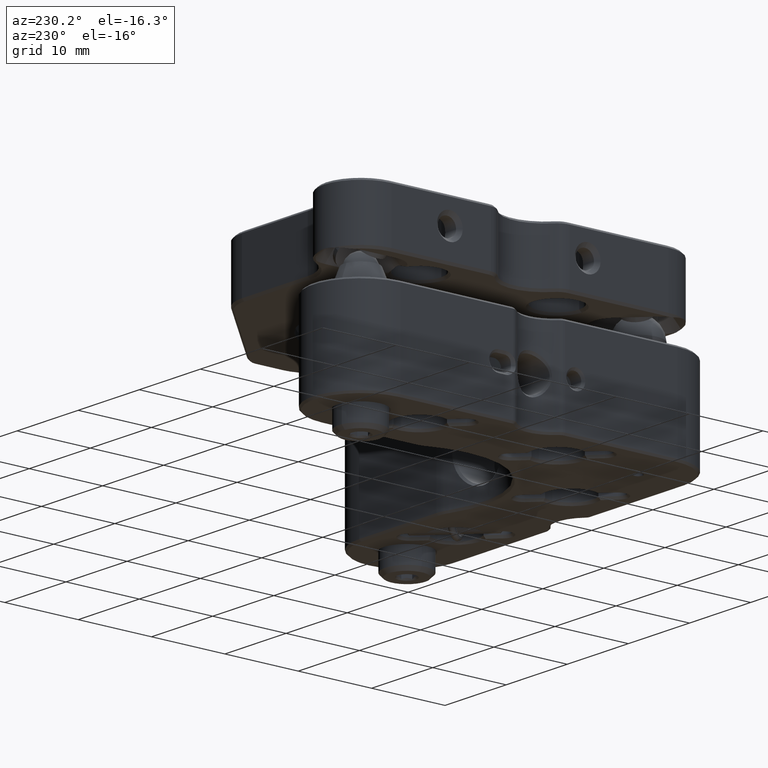
[diagram: clean part render]
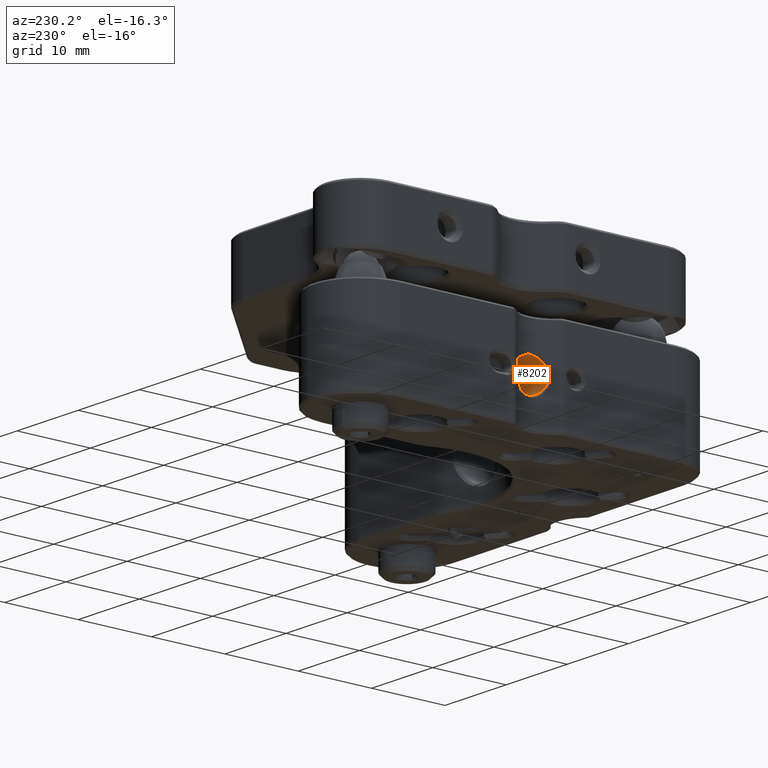
[diagram: same view with one face highlighted and labeled with its STEP entity id]
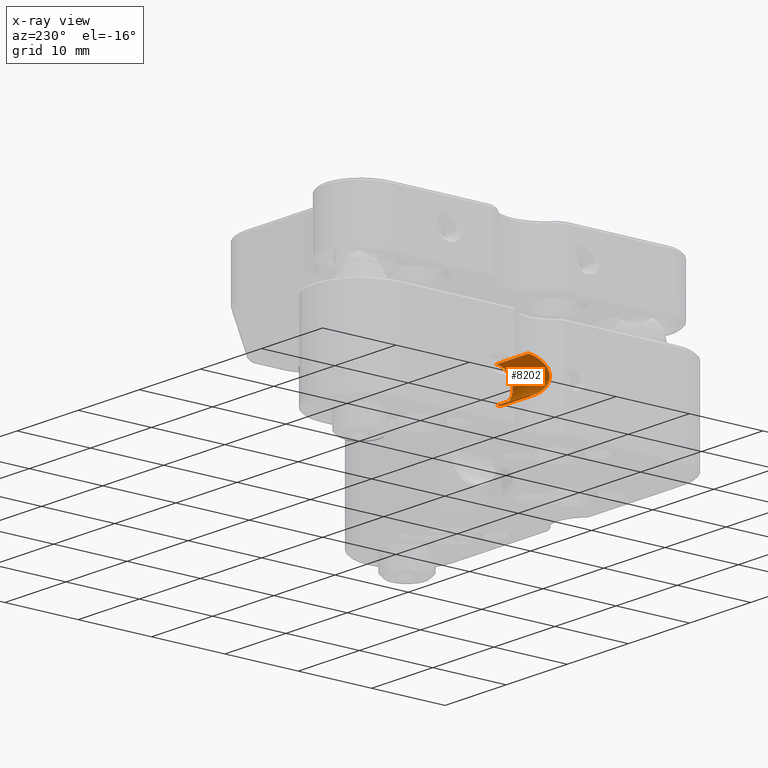
[diagram: x-ray of the same camera — body ghosted, the highlighted face saturated]
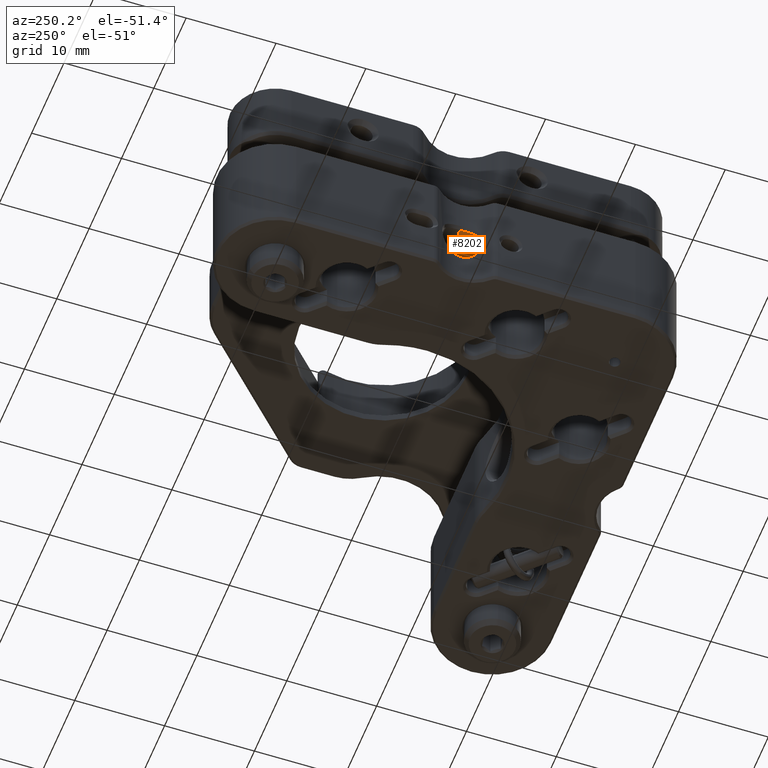
[diagram: same view with one face highlighted and labeled with its STEP entity id]
A machine part, auxiliary view. The second image highlights one B-rep face of the part: STEP entity #8202.
The next image is the same camera in x-ray: the body ghosted, the highlighted face saturated — about 5% of this face is hidden behind the body in this view.
A second angle (auxiliary view) of the same face is appended — the face is thin or edge-on in the first view.
In plain terms, the highlighted cylindrical surface (edge-blend (fillet) strip) has radius 2.25 mm, axis along (1, 0, 0).
Its self-contained STEP definition (entity closure, byte-faithful):
#58 = CARTESIAN_POINT ( 'NONE',  ( -24.32466739141865375, -2.107982197470907870, -0.7882192746797258565 ) ) ;
#196 = CARTESIAN_POINT ( 'NONE',  ( -24.21965348791920647, -1.962138421568791147, -1.101173609301772993 ) ) ;
#343 = CARTESIAN_POINT ( 'NONE',  ( -23.81481260575715098, -1.184974016732833313, 1.913272674546743657 ) ) ;
#630 = CARTESIAN_POINT ( 'NONE',  ( -23.60011776116756366, -0.08059759224475775141, 2.249826886914103596 ) ) ;
#780 = CARTESIAN_POINT ( 'NONE',  ( -24.04736731385843029, -1.685180040043422478, 1.491041833133006644 ) ) ;
#927 = CARTESIAN_POINT ( 'NONE',  ( -24.01242246992567431, -1.621413403093048711, 1.559999815251828847 ) ) ;
#1097 = CARTESIAN_POINT ( 'NONE',  ( -23.63499077402618553, -0.4844212129987863769, -2.197544627700772857 ) ) ;
#1375 = CARTESIAN_POINT ( 'NONE',  ( -23.84144468366184100, -1.253499736674638543, -1.868504353404251805 ) ) ;
#1417 = ORIENTED_EDGE ( 'NONE', *, *, #3854, .F. ) ;
#1507 = CARTESIAN_POINT ( 'NONE',  ( -23.60000000000001563, -2.119799535668940180E-15, -2.249999999999998668 ) ) ;
#1636 = CARTESIAN_POINT ( 'NONE',  ( -23.80208170770547937, -1.150266283493316610, -1.934357542465797275 ) ) ;
#1772 = CARTESIAN_POINT ( 'NONE',  ( -24.20209885077063205, -1.936302986817731719, -1.146103401881062522 ) ) ;
#1842 = EDGE_LOOP ( 'NONE', ( #14819, #25540, #21778, #18399, #1417 ) ) ;
#1902 = CARTESIAN_POINT ( 'NONE',  ( -24.19099546384305910, -1.919698856626135264, 1.173705852093318569 ) ) ;
#2029 = CIRCLE ( 'NONE', #5237, 2.250000000000000000 ) ;
#2039 = CARTESIAN_POINT ( 'NONE',  ( -24.42548436316024763, -2.235291565838195105, 0.2594863531247544319 ) ) ;
#2184 = CARTESIAN_POINT ( 'NONE',  ( -24.27754732932206494, -2.044311447035880747, -0.9400006432348685381 ) ) ;
#2322 = CARTESIAN_POINT ( 'NONE',  ( -24.43456181992873866, -2.246251538810859039, 0.1493326201847920420 ) ) ;
#2461 = CARTESIAN_POINT ( 'NONE',  ( -23.84836112443111489, -1.270805870449116526, 1.856782638456412338 ) ) ;
#2603 = CARTESIAN_POINT ( 'NONE',  ( -23.61340345148212094, -0.3088290848708334368, 2.230010077900894228 ) ) ;
#2739 = CARTESIAN_POINT ( 'NONE',  ( -23.92516785797679546, -1.447370307694779701, 1.722696405565069977 ) ) ;
#2747 = CARTESIAN_POINT ( 'NONE',  ( -18.39999999999999503, -2.144366948876982281E-15, -2.250000000000000000 ) ) ;
#2887 = CARTESIAN_POINT ( 'NONE',  ( -24.09139812314848328, -1.761318670483189353, 1.400148508519181378 ) ) ;
#3036 = CARTESIAN_POINT ( 'NONE',  ( -24.00106640247429368, -1.600035747220506233, 1.581896963002785483 ) ) ;
#3212 = CARTESIAN_POINT ( 'NONE',  ( -23.64048718123315851, -0.5207196192286990266, -2.189236488985344398 ) ) ;
#3215 = DIRECTION ( 'NONE',  ( 1.000000000000000000, -0.000000000000000000, -0.000000000000000000 ) ) ;
#3347 = CARTESIAN_POINT ( 'NONE',  ( -23.91623853348697537, -1.428130008998770517, -1.738678331484595052 ) ) ;
#3482 = CARTESIAN_POINT ( 'NONE',  ( -24.05494520323224705, -1.698571403664412394, -1.475696304095678091 ) ) ;
#3752 = CARTESIAN_POINT ( 'NONE',  ( -24.06499259472356300, -1.716126171132641431, -1.455160494093574286 ) ) ;
#3854 = EDGE_CURVE ( 'NONE', #26001, #12897, #17451, .T. ) ;
#3873 = CYLINDRICAL_SURFACE ( 'NONE', #21879, 2.249999999999998668 ) ;
#3878 = CARTESIAN_POINT ( 'NONE',  ( -23.60000371442932732, -0.004986978756578643902, 2.249994473336073497 ) ) ;
#3880 = CARTESIAN_POINT ( 'NONE',  ( -24.14413757411822914, -1.847374540177338487, -1.284438556998918735 ) ) ;
#4024 = CARTESIAN_POINT ( 'NONE',  ( -24.22144305606700598, -1.964826367115696693, 1.096838613752632030 ) ) ;
#4158 = CARTESIAN_POINT ( 'NONE',  ( -24.13208068386279592, -1.828160763054214044, 1.311645750601991178 ) ) ;
#4305 = CARTESIAN_POINT ( 'NONE',  ( -24.31078631630225928, -2.089452337690791861, 0.8348894395663435386 ) ) ;
#4445 = CARTESIAN_POINT ( 'NONE',  ( -24.30496698120418841, -2.081646276320482603, 0.8541348148865488543 ) ) ;
#4589 = CARTESIAN_POINT ( 'NONE',  ( -24.12531682003019640, -1.817264383983252962, 1.326701364041354969 ) ) ;
#4814 = CARTESIAN_POINT ( 'NONE',  ( -12.39999999999999680, -2.144366948876982281E-15, -2.249999999999998668 ) ) ;
#4874 = CARTESIAN_POINT ( 'NONE',  ( -23.92309251910576151, -1.442934219820769748, 1.726422293422005927 ) ) ;
#5025 = CARTESIAN_POINT ( 'NONE',  ( -23.93089802106196373, -1.459556543177292331, 1.712383838574647710 ) ) ;
#5038 = B_SPLINE_CURVE_WITH_KNOTS ( 'NONE', 3,
 ( #1507, #14687, #25331, #1097, #3212, #10147, #25462, #6016, #18409, #20527, #9883, #20807, #25196, #9737, #18805, #23072, #27053, #27466, #1636, #12283, #25065, #18547, #1375, #7606, #16285, #8008, #5889, #18676, #16689, #3347, #20939, #18942, #24927, #27192, #14557, #14150, #14279, #23202, #27326, #10016, #22930, #7873, #5756, #5492, #5630, #3482, #3752, #10287, #16556, #12411, #27600, #21068, #12012, #12150, #8140, #16819, #22797, #20666, #14419, #3880, #12960, #21622, #10838, #17370, #1772, #8700, #196, #12681, #14830, #28016, #6434, #21204, #2184, #8566, #23478, #12550, #58, #19356, #17237, #21476, #8274, #10417, #25883, #21764, #8841, #10692, #15251, #27867, #8415, #19071, #26020, #2322, #2039, #19631, #19495, #27729, #6574, #16950, #10553, #25604, #15109, #23747, #10977, #23888, #4305, #4445, #13103, #17510, #26165, #17097, #6715, #23336, #6160, #4024, #21331, #1902, #19209, #25744, #6300, #14970, #23611, #12813, #4158, #4589, #22328, #7147, #24028, #2887, #13839, #15823, #9125, #20200, #13690, #17799, #13395, #780, #11548, #9417, #927, #13248, #6853, #3036, #26880, #22046, #24466, #26305, #26449, #5025, #2739, #4874, #7005, #22187, #21905, #15680, #11257, #24318, #2461, #11112, #343, #26739, #18093, #5175, #15537, #13545, #7290, #15966, #24612, #22475, #11397, #19769, #11702, #8983, #20350, #20055, #15395, #2603, #17654, #630, #9568 ),
 .UNSPECIFIED., .F., .F.,
 ( 4, 2, 2, 2, 1, 2, 2, 1, 2, 2, 1, 1, 2, 2, 2, 1, 2, 2, 2, 1, 1, 2, 2, 2, 2, 2, 2, 1, 1, 2, 2, 1, 2, 2, 1, 2, 2, 2, 1, 2, 2, 2, 2, 2, 1, 2, 2, 2, 2, 2, 2, 2, 2, 2, 2, 1, 2, 2, 1, 2, 2, 2, 1, 2, 2, 2, 1, 2, 2, 1, 2, 2, 1, 1, 1, 2, 2, 2, 2, 2, 1, 2, 2, 2, 1, 2, 2, 2, 1, 2, 2, 1, 2, 2, 2, 2, 2, 2, 2, 2, 2, 4 ),
 ( 0.000000000000000000, 0.03124999999999691913, 0.03906249999999612116, 0.04687499999999532319, 0.05468749999999452521, 0.05859374999999412276, 0.06249999999999371336, 0.07031249999999292233, 0.07421874999999251987, 0.07812499999999211742, 0.08593749999999136802, 0.08984374999999089617, 0.09179687499999066025, 0.09374999999999042433, 0.1015624999999892170, 0.1054687499999884676, 0.1074218749999880929, 0.1093749999999877182, 0.1171874999999865941, 0.1210937499999861638, 0.1230468749999859557, 0.1240234374999857475, 0.1249999999999855393, 0.1289062499999849565, 0.1308593749999847899, 0.1328124999999846234, 0.1367187499999843181, 0.1386718749999841516, 0.1396484374999839295, 0.1401367187499840128, 0.1406249999999841238, 0.1445312499999845401, 0.1464843749999848455, 0.1484374999999851508, 0.1523437499999855671, 0.1542968749999857614, 0.1562499999999859557, 0.1640624999999860389, 0.1679687499999860389, 0.1699218749999860389, 0.1718749999999860389, 0.1796874999999862332, 0.1835937499999863998, 0.1874999999999865663, 0.1953124999999866773, 0.1992187499999867328, 0.2031249999999867883, 0.2109374999999869549, 0.2187499999999870937, 0.2265624999999872324, 0.2343749999999873712, 0.2499999999999877320, 0.2656249999999881206, 0.2734374999999882871, 0.2812499999999884537, 0.2890624999999886757, 0.2929687499999886757, 0.2968749999999886757, 0.3046874999999887312, 0.3085937499999888423, 0.3124999999999889533, 0.3203124999999891753, 0.3242187499999892863, 0.3261718749999895084, 0.3281249999999896749, 0.3359374999999904521, 0.3398437499999907296, 0.3417968749999910072, 0.3437499999999912292, 0.3476562499999917843, 0.3496093749999918954, 0.3515624999999920619, 0.3554687499999923950, 0.3574218749999925060, 0.3583984374999926725, 0.3588867187499928391, 0.3593749999999929501, 0.3632812499999932276, 0.3671874999999935052, 0.3710937499999937828, 0.3730468749999937828, 0.3740234374999939493, 0.3749999999999940603, 0.3828124999999944489, 0.3867187499999946709, 0.3886718749999948375, 0.3906249999999949485, 0.3984374999999952816, 0.4023437499999954481, 0.4042968749999954481, 0.4062499999999953926, 0.4140624999999958367, 0.4179687499999960587, 0.4218749999999962808, 0.4296874999999966693, 0.4374999999999970579, 0.4453124999999974465, 0.4531249999999978351, 0.4609374999999982236, 0.4687499999999986122, 0.4843749999999993339, 0.5000000000000000000 ),
 .UNSPECIFIED. ) ;
#5175 = CARTESIAN_POINT ( 'NONE',  ( -23.78271289249913778, -1.094378337773448395, 1.966010018256030278 ) ) ;
#5237 = AXIS2_PLACEMENT_3D ( 'NONE', #11743, #3215, #20670 ) ;
#5492 = CARTESIAN_POINT ( 'NONE',  ( -24.03251754270804241, -1.658423899465235163, -1.520622998695418726 ) ) ;
#5630 = CARTESIAN_POINT ( 'NONE',  ( -24.04682644022836868, -1.684237034009919309, -1.492146826282576111 ) ) ;
#5756 = CARTESIAN_POINT ( 'NONE',  ( -24.02900844056670948, -1.652026229955141368, -1.527551413787987311 ) ) ;
#5889 = CARTESIAN_POINT ( 'NONE',  ( -23.89533645739481926, -1.382002756631293572, -1.775721257017029098 ) ) ;
#6016 = CARTESIAN_POINT ( 'NONE',  ( -23.67378121897560561, -0.7007197345813125366, -2.138413464831346644 ) ) ;
#6160 = CARTESIAN_POINT ( 'NONE',  ( -24.23507277287832196, -1.984477545402289378, 1.060385529720133002 ) ) ;
#6300 = CARTESIAN_POINT ( 'NONE',  ( -24.16435586406479530, -1.879021418010904831, 1.237688114945835416 ) ) ;
#6434 = CARTESIAN_POINT ( 'NONE',  ( -24.25525332602293105, -2.013292599918183434, -1.005219265522200311 ) ) ;
#6574 = CARTESIAN_POINT ( 'NONE',  ( -24.39532704212714620, -2.198343580526146646, 0.4807436809092821561 ) ) ;
#6715 = CARTESIAN_POINT ( 'NONE',  ( -24.24481292806760990, -1.998418411905011460, 1.033883108627611680 ) ) ;
#6853 = CARTESIAN_POINT ( 'NONE',  ( -24.00367704756645537, -1.604978187774739329, 1.576882180350907436 ) ) ;
#7005 = CARTESIAN_POINT ( 'NONE',  ( -23.90588358200292163, -1.405784939822393387, 1.757201829681746874 ) ) ;
#7147 = CARTESIAN_POINT ( 'NONE',  ( -24.11259952756328317, -1.796566453705587429, 1.354657336426799752 ) ) ;
#7290 = CARTESIAN_POINT ( 'NONE',  ( -23.73530849180719215, -0.9449137381661967261, 2.042300820544774353 ) ) ;
#7606 = CARTESIAN_POINT ( 'NONE',  ( -23.85528789125227078, -1.288179446380618876, -1.845051611870786257 ) ) ;
#7873 = CARTESIAN_POINT ( 'NONE',  ( -24.02142226018101923, -1.638112429106720613, -1.542462853955179680 ) ) ;
#8008 = CARTESIAN_POINT ( 'NONE',  ( -23.88573599249775370, -1.360068028569856535, -1.792495936070026108 ) ) ;
#8098 = CARTESIAN_POINT ( 'NONE',  ( -23.59999993186399436, -0.0008312157879883444456, 2.249999999999999112 ) ) ;
#8140 = CARTESIAN_POINT ( 'NONE',  ( -24.10524728469431821, -1.784427163830970109, -1.370544248719187674 ) ) ;
#8202 = ADVANCED_FACE ( 'NONE', ( #12405 ), #3873, .F. ) ;
#8274 = CARTESIAN_POINT ( 'NONE',  ( -24.36471983342795511, -2.159879945449064031, -0.6315622192795918854 ) ) ;
#8415 = CARTESIAN_POINT ( 'NONE',  ( -24.43435871619175259, -2.246007000127956843, -0.1541673647870714647 ) ) ;
#8566 = CARTESIAN_POINT ( 'NONE',  ( -24.28809238459274411, -2.058783173987625226, -0.9078669199113602595 ) ) ;
#8700 = CARTESIAN_POINT ( 'NONE',  ( -24.21109530462076975, -1.949628363883574300, -1.123370932446053683 ) ) ;
#8841 = CARTESIAN_POINT ( 'NONE',  ( -24.40618234430998257, -2.211759257508585819, -0.4148050935231922254 ) ) ;
#8931 = B_SPLINE_CURVE_WITH_KNOTS ( 'NONE', 3,
 ( #14650, #18764, #10105, #8098, #11965 ),
 .UNSPECIFIED., .F., .F.,
 ( 4, 1, 4 ),
 ( 0.5000000000000000000, 0.5001717495703004168, 0.5003434991406008336 ),
 .UNSPECIFIED. ) ;
#8983 = CARTESIAN_POINT ( 'NONE',  ( -23.65361299977549692, -0.5983622717435874705, 2.169294210767562792 ) ) ;
#9125 = CARTESIAN_POINT ( 'NONE',  ( -24.08058158371583701, -1.742964730830065534, 1.422877398293449724 ) ) ;
#9417 = CARTESIAN_POINT ( 'NONE',  ( -24.02244677420066665, -1.640037770449433774, 1.540486773965078271 ) ) ;
#9568 = CARTESIAN_POINT ( 'NONE',  ( -23.60000371442932732, -0.004986978756578643902, 2.249994473336073497 ) ) ;
#9737 = CARTESIAN_POINT ( 'NONE',  ( -23.73877301411379293, -0.9571764656897961965, -2.036829078629896816 ) ) ;
#9883 = CARTESIAN_POINT ( 'NONE',  ( -23.70671159779474735, -0.8401996753201042001, -2.087322719221332612 ) ) ;
#10016 = CARTESIAN_POINT ( 'NONE',  ( -24.00786585935523831, -1.612924569527230956, -1.568851776943375631 ) ) ;
#10105 = CARTESIAN_POINT ( 'NONE',  ( -23.60000057499041759, -0.002493595382029266654, 2.249999078773657679 ) ) ;
#10147 = CARTESIAN_POINT ( 'NONE',  ( -23.65270709668393678, -0.5933609411396334465, -2.170674577195865762 ) ) ;
#10287 = CARTESIAN_POINT ( 'NONE',  ( -24.06948360221559469, -1.723915142958962532, -1.445925430258019118 ) ) ;
#10417 = CARTESIAN_POINT ( 'NONE',  ( -24.37279929602328821, -2.170130236378290611, -0.5953292986227219918 ) ) ;
#10553 = CARTESIAN_POINT ( 'NONE',  ( -24.37390940515928506, -2.171512006757292390, 0.5894022360598303312 ) ) ;
#10692 = CARTESIAN_POINT ( 'NONE',  ( -24.41159260998102809, -2.218393162715660782, -0.3776691793501304462 ) ) ;
#10838 = CARTESIAN_POINT ( 'NONE',  ( -24.17035758906329335, -1.888435233448775064, -1.223859797789765169 ) ) ;
#10977 = CARTESIAN_POINT ( 'NONE',  ( -24.33583845653862809, -2.122661869326520456, 0.7477894898248101940 ) ) ;
#11112 = CARTESIAN_POINT ( 'NONE',  ( -23.83271408251297174, -1.231696695783696782, 1.883308917584433972 ) ) ;
#11257 = CARTESIAN_POINT ( 'NONE',  ( -23.85648402685007952, -1.290781859903043172, 1.842947212187003636 ) ) ;
#11397 = CARTESIAN_POINT ( 'NONE',  ( -23.68230430970109879, -0.7396270244416485173, 2.125283129900632950 ) ) ;
#11548 = CARTESIAN_POINT ( 'NONE',  ( -24.03010402993888661, -1.654097594415238515, 1.525450315042449434 ) ) ;
#11702 = CARTESIAN_POINT ( 'NONE',  ( -23.66030921830811096, -0.6342703675253442697, 2.159076721765844642 ) ) ;
#11743 = CARTESIAN_POINT ( 'NONE',  ( -18.39999999999999503, -2.144366948876982281E-15, 0.000000000000000000 ) ) ;
#11965 = CARTESIAN_POINT ( 'NONE',  ( -23.59999995614657564, -4.739151444374919889E-13, 2.250000007561721471 ) ) ;
#12012 = CARTESIAN_POINT ( 'NONE',  ( -24.08497395083184855, -1.750496585947854067, -1.413743339675860522 ) ) ;
#12150 = CARTESIAN_POINT ( 'NONE',  ( -24.09558596671154618, -1.768406191140300177, -1.391329486886405675 ) ) ;
#12277 = DIRECTION ( 'NONE',  ( 0.000000000000000000, 0.000000000000000000, -1.000000000000000000 ) ) ;
#12283 = CARTESIAN_POINT ( 'NONE',  ( -23.82262335007533238, -1.205179767387268619, -1.900172341756956040 ) ) ;
#12405 = FACE_OUTER_BOUND ( 'NONE', #1842, .T. ) ;
#12411 = CARTESIAN_POINT ( 'NONE',  ( -24.07543713597314650, -1.734159710428061940, -1.433594123782083063 ) ) ;
#12477 = EDGE_CURVE ( 'NONE', #25483, #12897, #2029, .T. ) ;
#12542 = CARTESIAN_POINT ( 'NONE',  ( -12.39999999999999680, -2.144366948876982281E-15, 0.000000000000000000 ) ) ;
#12550 = CARTESIAN_POINT ( 'NONE',  ( -24.30916276325638847, -2.087337067340763852, -0.8408304651949356501 ) ) ;
#12681 = CARTESIAN_POINT ( 'NONE',  ( -24.22526154999554748, -1.970302443574133644, -1.086498404998810230 ) ) ;
#12742 = CARTESIAN_POINT ( 'NONE',  ( -18.39999999999999503, -1.868821419068827409E-15, 2.250000000000000000 ) ) ;
#12813 = CARTESIAN_POINT ( 'NONE',  ( -24.14202909892553706, -1.844091994466585893, 1.289338797182608021 ) ) ;
#12897 = VERTEX_POINT ( 'NONE', #2747 ) ;
#12960 = CARTESIAN_POINT ( 'NONE',  ( -24.15037574821124267, -1.857213682210707262, -1.270170239381414490 ) ) ;
#13103 = CARTESIAN_POINT ( 'NONE',  ( -24.29015420291931449, -2.061637369212327542, 0.9018544032980553293 ) ) ;
#13248 = CARTESIAN_POINT ( 'NONE',  ( -24.00777571262124965, -1.612716439193536244, 1.568995277089813456 ) ) ;
#13395 = CARTESIAN_POINT ( 'NONE',  ( -24.05597913144442757, -1.700390970848717931, 1.473598246407783918 ) ) ;
#13545 = CARTESIAN_POINT ( 'NONE',  ( -23.75535300662918203, -1.011205481066001166, 2.010302984436711071 ) ) ;
#13690 = CARTESIAN_POINT ( 'NONE',  ( -24.07466902191339386, -1.732856909166439863, 1.435209582817738916 ) ) ;
#13839 = CARTESIAN_POINT ( 'NONE',  ( -24.08515425874127658, -1.750749514118152383, 1.413300438050230978 ) ) ;
#14150 = CARTESIAN_POINT ( 'NONE',  ( -23.98975140836166631, -1.578392816557385281, -1.603496771999111559 ) ) ;
#14279 = CARTESIAN_POINT ( 'NONE',  ( -23.99350481370521848, -1.585613842238436044, -1.596356640752119027 ) ) ;
#14419 = CARTESIAN_POINT ( 'NONE',  ( -24.13458083881881322, -1.832223823444033561, -1.306144846545817861 ) ) ;
#14557 = CARTESIAN_POINT ( 'NONE',  ( -23.98417360829745348, -1.567616088127804508, -1.614080254907287237 ) ) ;
#14650 = CARTESIAN_POINT ( 'NONE',  ( -23.60000371442932732, -0.004986978756578643902, 2.249994473336073497 ) ) ;
#14687 = CARTESIAN_POINT ( 'NONE',  ( -23.60000198855829012, -0.1506737106541969351, -2.249999999999998668 ) ) ;
#14819 = ORIENTED_EDGE ( 'NONE', *, *, #18300, .T. ) ;
#14830 = CARTESIAN_POINT ( 'NONE',  ( -24.22757130403128301, -1.973653001750054647, -1.080409694730967818 ) ) ;
#14970 = CARTESIAN_POINT ( 'NONE',  ( -24.16034688356171500, -1.872799395404574518, 1.247073498895815646 ) ) ;
#15109 = CARTESIAN_POINT ( 'NONE',  ( -24.36127428801289696, -2.155448182465009133, 0.6456443158374119973 ) ) ;
#15251 = CARTESIAN_POINT ( 'NONE',  ( -24.42088993662427754, -2.229732082745041311, -0.3036397085231962167 ) ) ;
#15395 = CARTESIAN_POINT ( 'NONE',  ( -23.62089900923024288, -0.3809616917990595319, 2.218796414664036654 ) ) ;
#15537 = CARTESIAN_POINT ( 'NONE',  ( -23.76595132462579585, -1.044458032691329752, 1.993249801261741672 ) ) ;
#15680 = CARTESIAN_POINT ( 'NONE',  ( -23.86514703798791004, -1.311841473058302343, 1.828139597448073417 ) ) ;
#15823 = CARTESIAN_POINT ( 'NONE',  ( -24.08241861409383588, -1.746095388886454991, 1.419033839061394797 ) ) ;
#15966 = CARTESIAN_POINT ( 'NONE',  ( -23.72639809946346645, -0.9138595087773175862, 2.056403104755134770 ) ) ;
#16285 = CARTESIAN_POINT ( 'NONE',  ( -23.86705287884076654, -1.316607193899818506, -1.824925310699883729 ) ) ;
#16288 = CARTESIAN_POINT ( 'NONE',  ( -23.59999995614657564, -4.739151444374919889E-13, 2.250000007561721471 ) ) ;
#16556 = CARTESIAN_POINT ( 'NONE',  ( -24.07379090651246401, -1.731333092939290275, -1.437011425644739715 ) ) ;
#16689 = CARTESIAN_POINT ( 'NONE',  ( -23.91207080508416638, -1.419052399820784904, -1.746104586321197916 ) ) ;
#16815 = DIRECTION ( 'NONE',  ( 1.000000000000000000, -0.000000000000000000, -0.000000000000000000 ) ) ;
#16819 = CARTESIAN_POINT ( 'NONE',  ( -24.11147689715018316, -1.794702224468866847, -1.357061445256472876 ) ) ;
#16950 = CARTESIAN_POINT ( 'NONE',  ( -24.38545617299252655, -2.186080977751697851, 0.5347999283922590941 ) ) ;
#17050 = EDGE_CURVE ( 'NONE', #20090, #25483, #19492, .T. ) ;
#17071 = VERTEX_POINT ( 'NONE', #3878 ) ;
#17097 = CARTESIAN_POINT ( 'NONE',  ( -24.25393195463553653, -2.011386093252205853, 1.008684593068895019 ) ) ;
#17237 = CARTESIAN_POINT ( 'NONE',  ( -24.34751278906280447, -2.137754706054377341, -0.7020211151636642777 ) ) ;
#17347 = VECTOR ( 'NONE', #16815, 1000.000000000000000 ) ;
#17370 = CARTESIAN_POINT ( 'NONE',  ( -24.18352158233472693, -1.908502261255276666, -1.192228240327302347 ) ) ;
#17451 = LINE ( 'NONE', #4814, #20157 ) ;
#17510 = CARTESIAN_POINT ( 'NONE',  ( -24.27957639691381431, -2.047175212941507283, 0.9342951243943347084 ) ) ;
#17654 = CARTESIAN_POINT ( 'NONE',  ( -23.60282115263489899, -0.1570665976220986249, 2.245807301420388313 ) ) ;
#17799 = CARTESIAN_POINT ( 'NONE',  ( -24.06930879161764381, -1.723650832486522955, 1.446322596528333282 ) ) ;
#18093 = CARTESIAN_POINT ( 'NONE',  ( -23.78745590287765310, -1.108153075735815785, 1.958266952418388662 ) ) ;
#18300 = EDGE_CURVE ( 'NONE', #26001, #17071, #5038, .T. ) ;
#18399 = ORIENTED_EDGE ( 'NONE', *, *, #12477, .T. ) ;
#18409 = CARTESIAN_POINT ( 'NONE',  ( -23.68518812602707513, -0.7529484626619695753, -2.120845781035403110 ) ) ;
#18494 = CARTESIAN_POINT ( 'NONE',  ( -23.60000000000001563, -2.119799535668940180E-15, -2.249999999999998668 ) ) ;
#18547 = CARTESIAN_POINT ( 'NONE',  ( -23.83793243949989460, -1.244616433563786373, -1.874438375697835779 ) ) ;
#18676 = CARTESIAN_POINT ( 'NONE',  ( -23.90532528439472415, -1.404200558753851968, -1.758070456666746439 ) ) ;
#18764 = CARTESIAN_POINT ( 'NONE',  ( -23.60000246083070863, -0.004155868972466425157, 2.249996315441415096 ) ) ;
#18805 = CARTESIAN_POINT ( 'NONE',  ( -23.75411569823428337, -1.006811468503655327, -2.012256615860724018 ) ) ;
#18942 = CARTESIAN_POINT ( 'NONE',  ( -23.94171965333282515, -1.482512942287981916, -1.692908679368022584 ) ) ;
#19071 = CARTESIAN_POINT ( 'NONE',  ( -24.43762582025731334, -2.249908828565166274, -0.07758848457672658239 ) ) ;
#19209 = CARTESIAN_POINT ( 'NONE',  ( -24.18132318441189099, -1.905104969468660370, 1.197374525867036299 ) ) ;
#19356 = CARTESIAN_POINT ( 'NONE',  ( -24.33858608760228748, -2.126162007599067927, -0.7363857323682845291 ) ) ;
#19492 = LINE ( 'NONE', #28010, #17347 ) ;
#19495 = CARTESIAN_POINT ( 'NONE',  ( -24.41257670186594808, -2.219599761988301889, 0.3705145057891366944 ) ) ;
#19631 = CARTESIAN_POINT ( 'NONE',  ( -24.42169250333225961, -2.230706502969643790, 0.2963993927585509836 ) ) ;
#19769 = CARTESIAN_POINT ( 'NONE',  ( -23.67489619697341752, -0.7059922773787918882, 2.136699813701819384 ) ) ;
#20055 = CARTESIAN_POINT ( 'NONE',  ( -23.63606402725278954, -0.4917674645394936039, 2.195925111634386084 ) ) ;
#20090 = VERTEX_POINT ( 'NONE', #16288 ) ;
#20157 = VECTOR ( 'NONE', #22131, 1000.000000000000000 ) ;
#20200 = CARTESIAN_POINT ( 'NONE',  ( -24.07923160623139225, -1.740658985696379668, 1.425695677375513393 ) ) ;
#20350 = CARTESIAN_POINT ( 'NONE',  ( -23.64141510431033311, -0.5265606262676597593, 2.187831960636012152 ) ) ;
#20527 = CARTESIAN_POINT ( 'NONE',  ( -23.69792489426307114, -0.8052934019208740635, -2.101036450280729717 ) ) ;
#20666 = CARTESIAN_POINT ( 'NONE',  ( -24.12442568103968910, -1.815859439923208196, -1.328730222473326839 ) ) ;
#20670 = DIRECTION ( 'NONE',  ( 0.000000000000000000, 0.000000000000000000, -1.000000000000000000 ) ) ;
#20807 = CARTESIAN_POINT ( 'NONE',  ( -23.71154833784117955, -0.8587581719413096559, -2.079747467822521401 ) ) ;
#20939 = CARTESIAN_POINT ( 'NONE',  ( -23.92977476509162926, -1.457388014402700049, -1.714480324502302144 ) ) ;
#21068 = CARTESIAN_POINT ( 'NONE',  ( -24.07653958997362054, -1.736051492823961651, -1.431304159678165711 ) ) ;
#21204 = CARTESIAN_POINT ( 'NONE',  ( -24.27210281700704186, -2.036785067236545732, -0.9562085578197888625 ) ) ;
#21331 = CARTESIAN_POINT ( 'NONE',  ( -24.20974224296762145, -1.947713575552437959, 1.127044070605889958 ) ) ;
#21476 = CARTESIAN_POINT ( 'NONE',  ( -24.35150635308170664, -2.142910420863586740, -0.6861472014428472432 ) ) ;
#21622 = CARTESIAN_POINT ( 'NONE',  ( -24.15292866291461849, -1.861222415411575071, -1.264296700775987548 ) ) ;
#21764 = CARTESIAN_POINT ( 'NONE',  ( -24.39383860826908190, -2.196500526927538388, -0.4892113183428690171 ) ) ;
#21778 = ORIENTED_EDGE ( 'NONE', *, *, #17050, .T. ) ;
#21879 = AXIS2_PLACEMENT_3D ( 'NONE', #12542, #25454, #12277 ) ;
#21905 = CARTESIAN_POINT ( 'NONE',  ( -23.87419366861587378, -1.333242157625854629, 1.812536555168792196 ) ) ;
#22046 = CARTESIAN_POINT ( 'NONE',  ( -23.98320144181499458, -1.566030567032232979, 1.616101907190928388 ) ) ;
#22131 = DIRECTION ( 'NONE',  ( 1.000000000000000000, -0.000000000000000000, -0.000000000000000000 ) ) ;
#22187 = CARTESIAN_POINT ( 'NONE',  ( -23.89279842252529562, -1.376445444943512841, 1.780222344503695542 ) ) ;
#22328 = CARTESIAN_POINT ( 'NONE',  ( -24.12123359948549606, -1.810642394997643567, 1.335715537779659012 ) ) ;
#22475 = CARTESIAN_POINT ( 'NONE',  ( -23.69876746006820767, -0.8092957173830639395, 2.099742117344430614 ) ) ;
#22797 = CARTESIAN_POINT ( 'NONE',  ( -24.11387157494077016, -1.798634092176791821, -1.351853460948128305 ) ) ;
#22930 = CARTESIAN_POINT ( 'NONE',  ( -24.01786002140897125, -1.631525055375395050, -1.549421306466728598 ) ) ;
#23072 = CARTESIAN_POINT ( 'NONE',  ( -23.76463254531198288, -1.039943824279465412, -1.995335275969614797 ) ) ;
#23202 = CARTESIAN_POINT ( 'NONE',  ( -23.99610653616590028, -1.590592354775475892, -1.591391383415246219 ) ) ;
#23336 = CARTESIAN_POINT ( 'NONE',  ( -24.23864574946204087, -1.989607838283119046, 1.050738350489224260 ) ) ;
#23478 = CARTESIAN_POINT ( 'NONE',  ( -24.29260084710839607, -2.064927389528188773, -0.8938360319152325317 ) ) ;
#23611 = CARTESIAN_POINT ( 'NONE',  ( -24.15138537192979129, -1.858821565604827475, 1.267896658070518434 ) ) ;
#23747 = CARTESIAN_POINT ( 'NONE',  ( -24.34908213782228259, -2.139807687566280148, 0.6964027998879045445 ) ) ;
#23789 = EDGE_CURVE ( 'NONE', #17071, #20090, #8931, .T. ) ;
#23888 = CARTESIAN_POINT ( 'NONE',  ( -24.32101747861540986, -2.103073838564720077, 0.7999574221954388609 ) ) ;
#24028 = CARTESIAN_POINT ( 'NONE',  ( -24.10332862621554284, -1.781315296577269836, 1.374767595566673606 ) ) ;
#24318 = CARTESIAN_POINT ( 'NONE',  ( -23.85079393486709876, -1.276822008397826780, 1.852646160396946184 ) ) ;
#24466 = CARTESIAN_POINT ( 'NONE',  ( -23.96890062506370356, -1.537790993276672458, 1.642864138231620919 ) ) ;
#24612 = CARTESIAN_POINT ( 'NONE',  ( -23.70758621802066912, -0.8441679128363244189, 2.085980217060276143 ) ) ;
#24927 = CARTESIAN_POINT ( 'NONE',  ( -23.96131084013083878, -1.522386522317439317, -1.656852552838952164 ) ) ;
#25065 = CARTESIAN_POINT ( 'NONE',  ( -23.83176387518429351, -1.228828540356144750, -1.884826174847952673 ) ) ;
#25196 = CARTESIAN_POINT ( 'NONE',  ( -23.72472808948144873, -0.9078205411678184067, -2.059034330989763628 ) ) ;
#25331 = CARTESIAN_POINT ( 'NONE',  ( -23.61057649058350094, -0.3033075085122414194, -2.234360175243929270 ) ) ;
#25454 = DIRECTION ( 'NONE',  ( 1.000000000000000000, -0.000000000000000000, -0.000000000000000000 ) ) ;
#25462 = CARTESIAN_POINT ( 'NONE',  ( -23.65975410840436055, -0.6313047517959231580, -2.159924675391157844 ) ) ;
#25483 = VERTEX_POINT ( 'NONE', #12742 ) ;
#25540 = ORIENTED_EDGE ( 'NONE', *, *, #23789, .T. ) ;
#25604 = CARTESIAN_POINT ( 'NONE',  ( -24.36583913800408752, -2.161272273019841261, 0.6259085821739908129 ) ) ;
#25744 = CARTESIAN_POINT ( 'NONE',  ( -24.17120257017739604, -1.889582018974919730, 1.221504462860676155 ) ) ;
#25883 = CARTESIAN_POINT ( 'NONE',  ( -24.38749917260964750, -2.188614172139440761, -0.5233070056403866799 ) ) ;
#26001 = VERTEX_POINT ( 'NONE', #18494 ) ;
#26020 = CARTESIAN_POINT ( 'NONE',  ( -24.43777764330376101, -2.250087954092659270, 0.07220740018514598679 ) ) ;
#26165 = CARTESIAN_POINT ( 'NONE',  ( -24.26265575718218415, -2.023625259160516165, 0.9837551745606322173 ) ) ;
#26305 = CARTESIAN_POINT ( 'NONE',  ( -23.94915369428532870, -1.497661366336241695, 1.679236838777202978 ) ) ;
#26449 = CARTESIAN_POINT ( 'NONE',  ( -23.93970630248329812, -1.478152242796121785, 1.696480275748013300 ) ) ;
#26739 = CARTESIAN_POINT ( 'NONE',  ( -23.79822358932026916, -1.138795142642861080, 1.940607719063741854 ) ) ;
#26880 = CARTESIAN_POINT ( 'NONE',  ( -24.00056808142162623, -1.599093182453249717, 1.582854426722712704 ) ) ;
#27053 = CARTESIAN_POINT ( 'NONE',  ( -23.77046174730488914, -1.057807784073789614, -1.985912028716148692 ) ) ;
#27192 = CARTESIAN_POINT ( 'NONE',  ( -23.97152489713888102, -1.542868419732222218, -1.637899252399542371 ) ) ;
#27326 = CARTESIAN_POINT ( 'NONE',  ( -24.00212649033597145, -1.602075507765103657, -1.579880772677152878 ) ) ;
#27466 = CARTESIAN_POINT ( 'NONE',  ( -23.78582244204743645, -1.103773880455433787, -1.960968841213630354 ) ) ;
#27600 = CARTESIAN_POINT ( 'NONE',  ( -24.07649023159246227, -1.735966325224546525, -1.431405927995563099 ) ) ;
#27729 = CARTESIAN_POINT ( 'NONE',  ( -24.40699851324116310, -2.212763932314449455, 0.4092734594656994296 ) ) ;
#27867 = CARTESIAN_POINT ( 'NONE',  ( -24.42467432623312718, -2.234313144390319028, -0.2679524734947279496 ) ) ;
#28010 = CARTESIAN_POINT ( 'NONE',  ( -12.39999999999999680, -1.868821419068827803E-15, 2.249999999999998668 ) ) ;
#28016 = CARTESIAN_POINT ( 'NONE',  ( -24.24333239331481238, -1.996413068427654869, -1.038410004180356339 ) ) ;